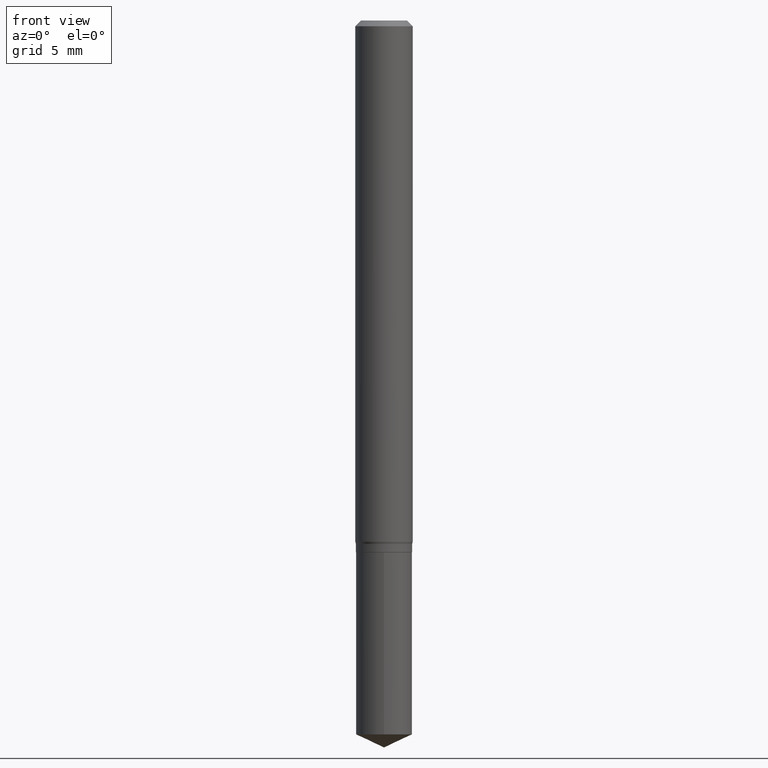
[diagram: clean part render]
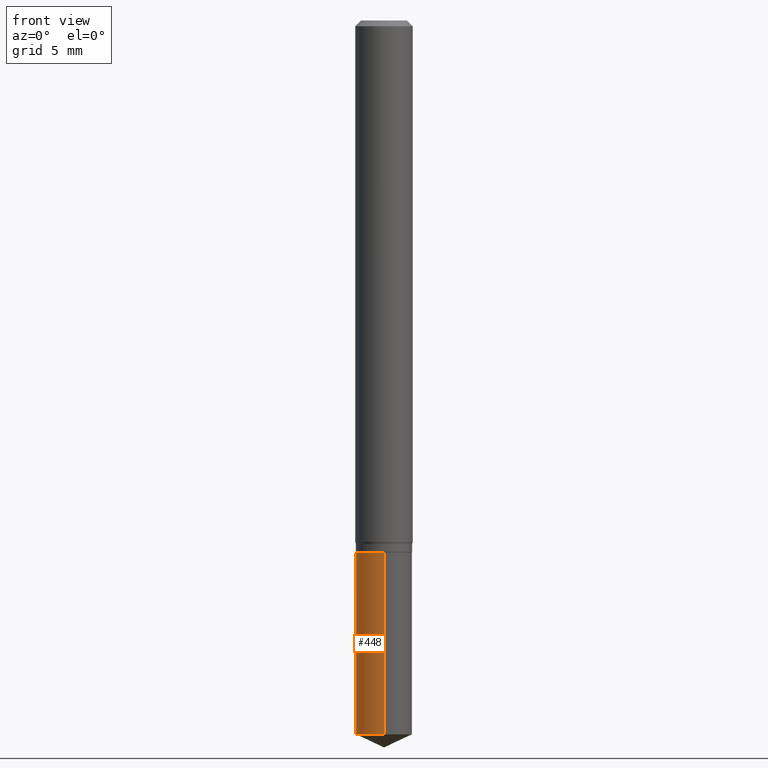
[diagram: same view with one face highlighted and labeled with its STEP entity id]
A machine part, front view. The second image highlights one B-rep face of the part: STEP entity #448.
In plain terms, the highlighted cylindrical surface (edge-blend (fillet) strip) has radius 1.4694 mm, axis along (-0, 0, 1).
Its self-contained STEP definition (entity closure, byte-faithful):
#1 = LINE ( 'NONE', #421, #56 ) ;
#16 = DIRECTION ( 'NONE',  ( -2.445458899330790108E-29, 3.491495526022433205E-15, 1.000000000000000000 ) ) ;
#42 = EDGE_CURVE ( 'NONE', #450, #449, #1, .T. ) ;
#55 = DIRECTION ( 'NONE',  ( -6.982962677686265922E-15, -1.000000000000000000, 2.361147790548196524E-15 ) ) ;
#56 = VECTOR ( 'NONE', #243, 39.37007874015748143 ) ;
#84 = CARTESIAN_POINT ( 'NONE',  ( -4.039643909041237478E-16, -0.05785000000000382198, -1.094499999999999806 ) ) ;
#88 = AXIS2_PLACEMENT_3D ( 'NONE', #202, #16, #165 ) ;
#95 = VERTEX_POINT ( 'NONE', #164 ) ;
#99 = ORIENTED_EDGE ( 'NONE', *, *, #42, .F. ) ;
#126 = CARTESIAN_POINT ( 'NONE',  ( 4.110489726372537918E-16, 0.05784999999999485693, -1.469124101975733732 ) ) ;
#128 = CIRCLE ( 'NONE', #88, 0.05784999999999999865 ) ;
#158 = DIRECTION ( 'NONE',  ( -2.445458899330790108E-29, 3.491495526022433599E-15, 1.000000000000000000 ) ) ;
#164 = CARTESIAN_POINT ( 'NONE',  ( -4.039643909041145280E-16, -0.05785000000000512649, -1.469124101975733065 ) ) ;
#165 = DIRECTION ( 'NONE',  ( -6.982962677686265922E-15, -1.000000000000000000, 2.361147790548196524E-15 ) ) ;
#179 = ORIENTED_EDGE ( 'NONE', *, *, #260, .T. ) ;
#202 = CARTESIAN_POINT ( 'NONE',  ( 2.676565608369631794E-29, -3.821426325363822773E-15, -1.094499999999999806 ) ) ;
#207 = DIRECTION ( 'NONE',  ( -6.982962677686265922E-15, -1.000000000000000000, 4.722295581096393049E-15 ) ) ;
#216 = FACE_OUTER_BOUND ( 'NONE', #373, .T. ) ;
#243 = DIRECTION ( 'NONE',  ( -2.445458899330790108E-29, 3.491495526022433599E-15, 1.000000000000000000 ) ) ;
#250 = DIRECTION ( 'NONE',  ( -2.445458899330790108E-29, 3.491495526022433205E-15, 1.000000000000000000 ) ) ;
#257 = ORIENTED_EDGE ( 'NONE', *, *, #287, .F. ) ;
#260 = EDGE_CURVE ( 'NONE', #95, #386, #457, .T. ) ;
#277 = VECTOR ( 'NONE', #158, 39.37007874015748143 ) ;
#287 = EDGE_CURVE ( 'NONE', #449, #386, #128, .T. ) ;
#293 = DIRECTION ( 'NONE',  ( -2.445458899330790108E-29, 3.491495526022433205E-15, 1.000000000000000000 ) ) ;
#309 = EDGE_CURVE ( 'NONE', #450, #95, #315, .T. ) ;
#315 = CIRCLE ( 'NONE', #397, 0.05784999999999999865 ) ;
#324 = AXIS2_PLACEMENT_3D ( 'NONE', #408, #293, #55 ) ;
#331 = CARTESIAN_POINT ( 'NONE',  ( 4.110489726372538411E-16, 0.05784999999999617531, -1.094500000000000028 ) ) ;
#357 = CARTESIAN_POINT ( 'NONE',  ( 3.592693452449994614E-29, -5.129424701352268102E-15, -1.469124101975733288 ) ) ;
#371 = CYLINDRICAL_SURFACE ( 'NONE', #324, 0.05784999999999999865 ) ;
#373 = EDGE_LOOP ( 'NONE', ( #99, #481, #179, #257 ) ) ;
#386 = VERTEX_POINT ( 'NONE', #84 ) ;
#390 = CARTESIAN_POINT ( 'NONE',  ( -4.039643909041237478E-16, -0.05785000000000382198, -1.094499999999999806 ) ) ;
#397 = AXIS2_PLACEMENT_3D ( 'NONE', #357, #250, #207 ) ;
#408 = CARTESIAN_POINT ( 'NONE',  ( 2.676565608369631794E-29, -3.821426325363822773E-15, -1.094499999999999806 ) ) ;
#421 = CARTESIAN_POINT ( 'NONE',  ( 4.110489726372446213E-16, 0.05784999999999617531, -1.094500000000000028 ) ) ;
#448 = ADVANCED_FACE ( 'NONE', ( #216 ), #371, .T. ) ;
#449 = VERTEX_POINT ( 'NONE', #331 ) ;
#450 = VERTEX_POINT ( 'NONE', #126 ) ;
#457 = LINE ( 'NONE', #390, #277 ) ;
#481 = ORIENTED_EDGE ( 'NONE', *, *, #309, .T. ) ;